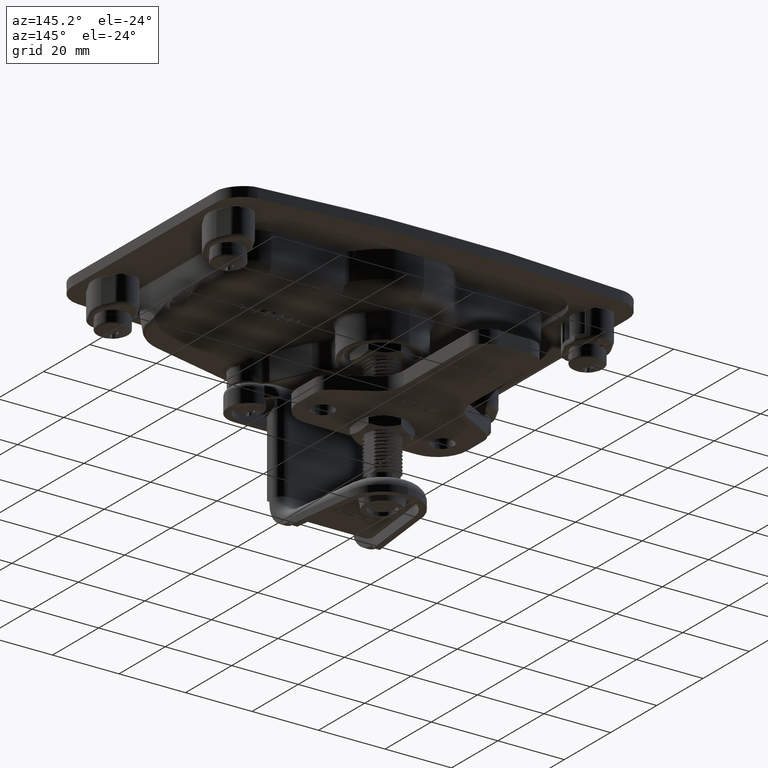
[diagram: clean part render]
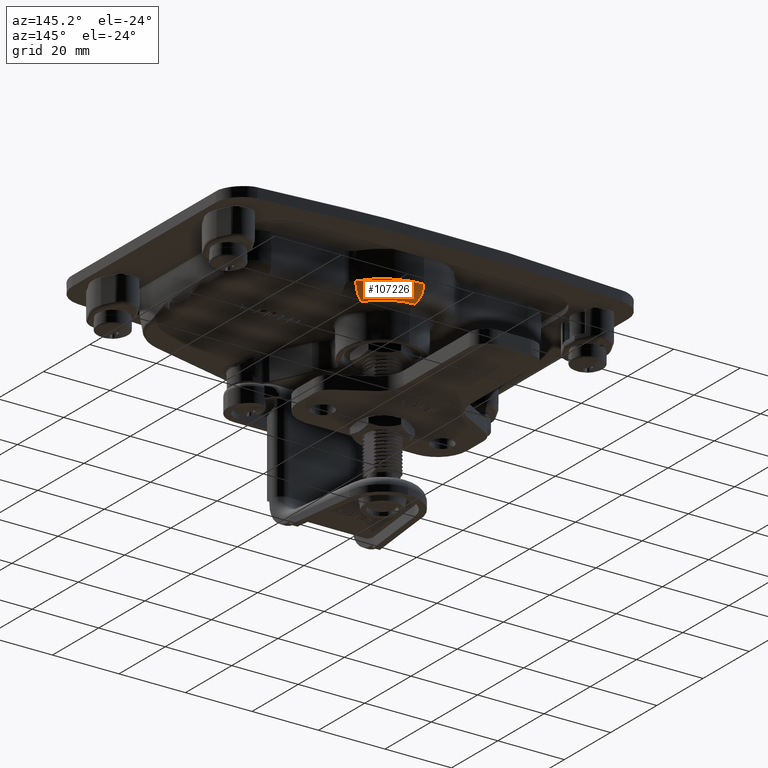
[diagram: same view with one face highlighted and labeled with its STEP entity id]
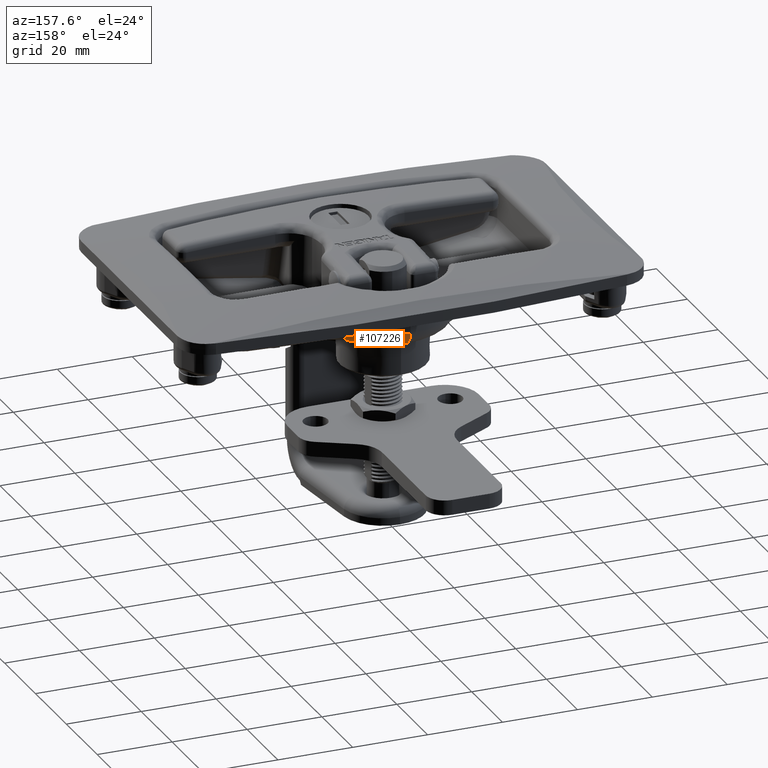
[diagram: same view with one face highlighted and labeled with its STEP entity id]
A machine part, auxiliary view. The second image highlights one B-rep face of the part: STEP entity #107226.
A second angle (auxiliary view) of the same face is appended — the face is thin or edge-on in the first view.
In plain terms, the highlighted toroidal blend (fillet) surface has major radius 13.8598 mm and minor (blend) radius 4 mm.
Its self-contained STEP definition (entity closure, byte-faithful):
#49605 = CARTESIAN_POINT ( 'NONE',  ( 11.53655532631875300, 21.68118258689458200, -12.99999999999998800 ) ) ;
#49606 = AXIS2_PLACEMENT_3D ( 'NONE', #49605, #49653, #49652 ) ;
#49607 = CIRCLE ( 'NONE', #49606, 3.999999999999999600 ) ;
#49635 = DIRECTION ( 'NONE',  ( 0.0000000000000000000, 1.000000000000000000, 1.182766006347823400E-016 ) ) ;
#49636 = DIRECTION ( 'NONE',  ( 0.0000000000000000000, 1.182766006347823400E-016, -1.000000000000000000 ) ) ;
#49637 = CARTESIAN_POINT ( 'NONE',  ( -1.734723475965846300E-015, 14.00000000000002100, -12.99999999999999800 ) ) ;
#49638 = AXIS2_PLACEMENT_3D ( 'NONE', #49637, #49636, #49635 ) ;
#49639 = TOROIDAL_SURFACE ( 'NONE', #49638, 13.85975016839862800, 4.000000000000000000 ) ;
#49640 = FACE_OUTER_BOUND ( 'NONE', #107227, .T. ) ;
#49652 = DIRECTION ( 'NONE',  ( -0.8323783030824945000, -0.5542078676430956000, 0.0000000000000000000 ) ) ;
#49653 = DIRECTION ( 'NONE',  ( -0.5542078676430957100, 0.8323783030824942800, -2.403493496428806700E-016 ) ) ;
#93210 = VERTEX_POINT ( 'NONE', #144948 ) ;
#93213 = EDGE_CURVE ( 'NONE', #93210, #93214, #144946, .T. ) ;
#93214 = VERTEX_POINT ( 'NONE', #144941 ) ;
#93409 = EDGE_CURVE ( 'NONE', #93410, #93210, #145797, .T. ) ;
#93410 = VERTEX_POINT ( 'NONE', #145793 ) ;
#94006 = EDGE_CURVE ( 'NONE', #93214, #94007, #147419, .T. ) ;
#94007 = VERTEX_POINT ( 'NONE', #147414 ) ;
#107148 = ORIENTED_EDGE ( 'NONE', *, *, #93213, .F. ) ;
#107151 = ORIENTED_EDGE ( 'NONE', *, *, #93409, .F. ) ;
#107221 = EDGE_CURVE ( 'NONE', #93410, #94007, #49607, .T. ) ;
#107226 = ADVANCED_FACE ( 'NONE', ( #49640 ), #49639, .T. ) ;
#107227 = EDGE_LOOP ( 'NONE', ( #107148, #107151, #107262, #107264 ) ) ;
#107262 = ORIENTED_EDGE ( 'NONE', *, *, #107221, .T. ) ;
#107264 = ORIENTED_EDGE ( 'NONE', *, *, #94006, .F. ) ;
#144941 = CARTESIAN_POINT ( 'NONE',  ( -1.734723475965846300E-015, 27.85975016839865100, -16.99999999999999600 ) ) ;
#144942 = DIRECTION ( 'NONE',  ( 0.0000000000000000000, 0.0000000000000000000, 1.000000000000000000 ) ) ;
#144943 = DIRECTION ( 'NONE',  ( -1.000000000000000000, 0.0000000000000000000, 0.0000000000000000000 ) ) ;
#144944 = CARTESIAN_POINT ( 'NONE',  ( -1.734723475965846300E-015, 27.85975016839865100, -12.99999999999999600 ) ) ;
#144945 = AXIS2_PLACEMENT_3D ( 'NONE', #144944, #144943, #144942 ) ;
#144946 = CIRCLE ( 'NONE', #144945, 4.000000000000000000 ) ;
#144948 = CARTESIAN_POINT ( 'NONE',  ( -1.734723475965846300E-015, 31.85914094902421600, -13.06980962574913000 ) ) ;
#145793 = CARTESIAN_POINT ( 'NONE',  ( 14.86556143765969800, 23.89767642329643800, -13.06980962574912500 ) ) ;
#145794 = DIRECTION ( 'NONE',  ( 0.0000000000000000000, -1.000000000000000000, -9.713364606552313600E-017 ) ) ;
#145795 = DIRECTION ( 'NONE',  ( 0.0000000000000000000, -1.182766006347823400E-016, 1.000000000000000000 ) ) ;
#145796 = AXIS2_PLACEMENT_3D ( 'NONE', #145803, #145795, #145794 ) ;
#145797 = CIRCLE ( 'NONE', #145796, 17.85914094902419400 ) ;
#145803 = CARTESIAN_POINT ( 'NONE',  ( -1.734723475965846300E-015, 14.00000000000002100, -13.06980962574913200 ) ) ;
#147414 = CARTESIAN_POINT ( 'NONE',  ( 11.53655532631875500, 21.68118258689458200, -16.99999999999999600 ) ) ;
#147415 = DIRECTION ( 'NONE',  ( 0.0000000000000000000, 1.000000000000000000, 0.0000000000000000000 ) ) ;
#147416 = DIRECTION ( 'NONE',  ( 0.0000000000000000000, 1.182766006347823400E-016, -1.000000000000000000 ) ) ;
#147417 = CARTESIAN_POINT ( 'NONE',  ( -1.734723475965846300E-015, 14.00000000000002100, -16.99999999999999600 ) ) ;
#147418 = AXIS2_PLACEMENT_3D ( 'NONE', #147417, #147416, #147415 ) ;
#147419 = CIRCLE ( 'NONE', #147418, 13.85975016839863000 ) ;